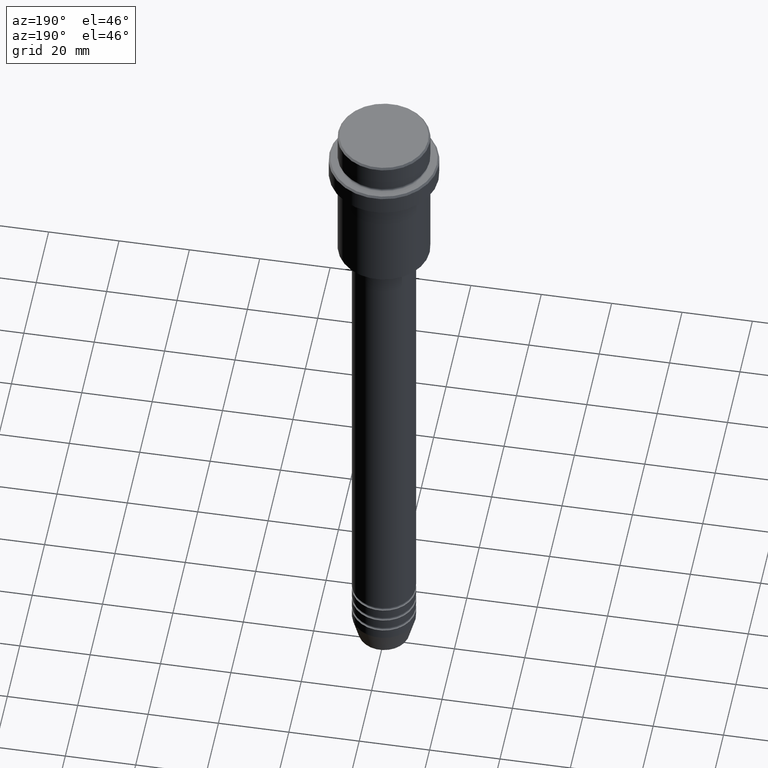
[diagram: clean part render]
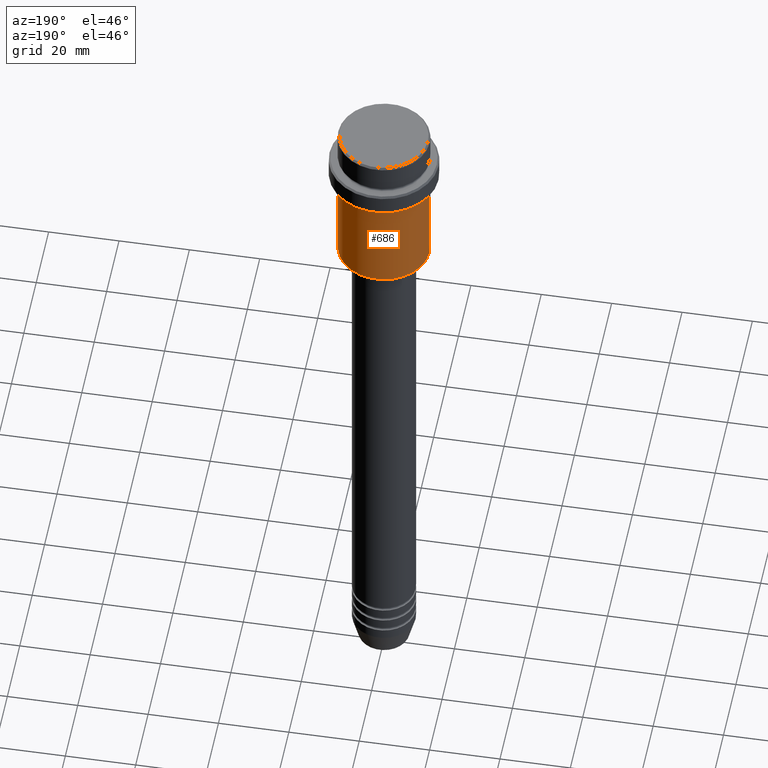
[diagram: same view with one face highlighted and labeled with its STEP entity id]
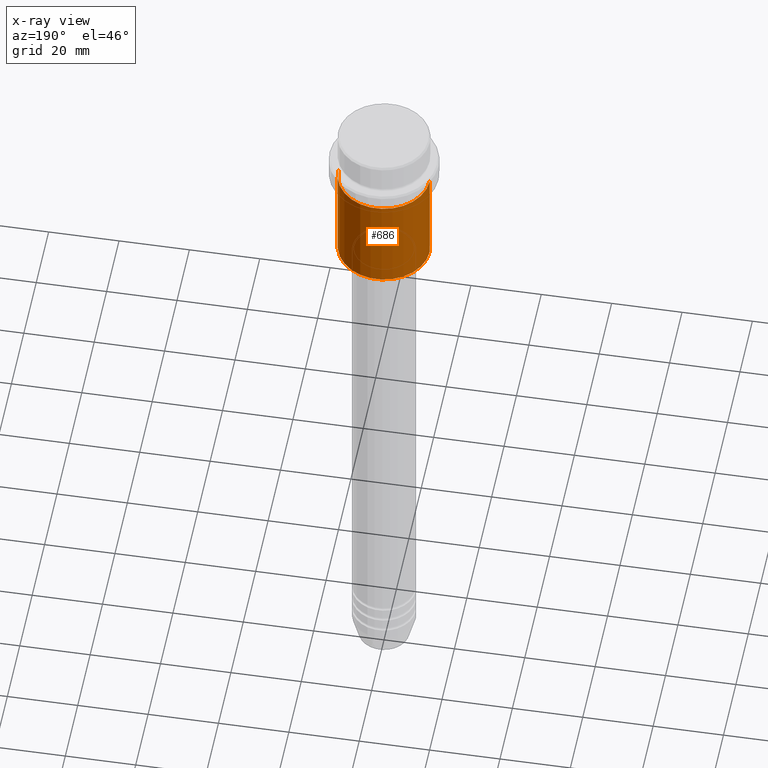
[diagram: x-ray of the same camera — body ghosted, the highlighted face saturated]
A machine part, auxiliary view. The second image highlights one B-rep face of the part: STEP entity #686.
The next image is the same camera in x-ray: the body ghosted, the highlighted face saturated — about 0% of this face is hidden behind the body in this view.
In plain terms, the highlighted cylindrical surface (partial cylindrical patch) has radius 13 mm, axis along (-0, -0, 1).
Its self-contained STEP definition (entity closure, byte-faithful):
#35 = VERTEX_POINT ( 'NONE', #377 ) ;
#86 = DIRECTION ( 'NONE',  ( -0.000000000000000000, -0.000000000000000000, 1.000000000000000000 ) ) ;
#137 = CARTESIAN_POINT ( 'NONE',  ( 0.000000000000000000, 0.000000000000000000, -44.50000000000004974 ) ) ;
#168 = ORIENTED_EDGE ( 'NONE', *, *, #898, .T. ) ;
#201 = DIRECTION ( 'NONE',  ( -0.000000000000000000, -0.000000000000000000, 1.000000000000000000 ) ) ;
#216 = CIRCLE ( 'NONE', #623, 13.00000000000000000 ) ;
#223 = CARTESIAN_POINT ( 'NONE',  ( -13.00000000000000000, 1.592040838891559095E-15, 0.000000000000000000 ) ) ;
#278 = EDGE_CURVE ( 'NONE', #35, #927, #1290, .T. ) ;
#299 = CARTESIAN_POINT ( 'NONE',  ( 0.000000000000000000, 0.000000000000000000, -16.00000000000000000 ) ) ;
#375 = CARTESIAN_POINT ( 'NONE',  ( -13.00000000000000000, 1.592040838891559095E-15, -44.50000000000004974 ) ) ;
#377 = CARTESIAN_POINT ( 'NONE',  ( 13.00000000000000000, 0.000000000000000000, -16.00000000000000000 ) ) ;
#411 = FACE_OUTER_BOUND ( 'NONE', #562, .T. ) ;
#419 = CARTESIAN_POINT ( 'NONE',  ( 13.00000000000000000, 0.000000000000000000, -44.50000000000004974 ) ) ;
#456 = ORIENTED_EDGE ( 'NONE', *, *, #790, .F. ) ;
#459 = LINE ( 'NONE', #1108, #813 ) ;
#508 = VECTOR ( 'NONE', #1099, 1000.000000000000000 ) ;
#529 = AXIS2_PLACEMENT_3D ( 'NONE', #1390, #201, #1282 ) ;
#545 = CYLINDRICAL_SURFACE ( 'NONE', #529, 13.00000000000000000 ) ;
#561 = DIRECTION ( 'NONE',  ( -0.000000000000000000, -0.000000000000000000, 1.000000000000000000 ) ) ;
#562 = EDGE_LOOP ( 'NONE', ( #168, #1237, #1182, #456 ) ) ;
#567 = VERTEX_POINT ( 'NONE', #375 ) ;
#574 = DIRECTION ( 'NONE',  ( -1.000000000000000000, 0.000000000000000000, 0.000000000000000000 ) ) ;
#605 = DIRECTION ( 'NONE',  ( 1.000000000000000000, 0.000000000000000000, 0.000000000000000000 ) ) ;
#623 = AXIS2_PLACEMENT_3D ( 'NONE', #137, #1124, #574 ) ;
#686 = ADVANCED_FACE ( 'NONE', ( #411 ), #545, .T. ) ;
#774 = CARTESIAN_POINT ( 'NONE',  ( -13.00000000000000000, 1.592040838891559095E-15, -16.00000000000000000 ) ) ;
#788 = AXIS2_PLACEMENT_3D ( 'NONE', #299, #86, #605 ) ;
#790 = EDGE_CURVE ( 'NONE', #1407, #35, #459, .T. ) ;
#813 = VECTOR ( 'NONE', #561, 1000.000000000000000 ) ;
#887 = LINE ( 'NONE', #223, #508 ) ;
#898 = EDGE_CURVE ( 'NONE', #1407, #567, #216, .T. ) ;
#927 = VERTEX_POINT ( 'NONE', #774 ) ;
#1099 = DIRECTION ( 'NONE',  ( -0.000000000000000000, -0.000000000000000000, 1.000000000000000000 ) ) ;
#1108 = CARTESIAN_POINT ( 'NONE',  ( 13.00000000000000000, 0.000000000000000000, 0.000000000000000000 ) ) ;
#1124 = DIRECTION ( 'NONE',  ( -0.000000000000000000, -0.000000000000000000, 1.000000000000000000 ) ) ;
#1182 = ORIENTED_EDGE ( 'NONE', *, *, #278, .F. ) ;
#1234 = EDGE_CURVE ( 'NONE', #567, #927, #887, .T. ) ;
#1237 = ORIENTED_EDGE ( 'NONE', *, *, #1234, .T. ) ;
#1282 = DIRECTION ( 'NONE',  ( 1.000000000000000000, 0.000000000000000000, 0.000000000000000000 ) ) ;
#1290 = CIRCLE ( 'NONE', #788, 13.00000000000000000 ) ;
#1390 = CARTESIAN_POINT ( 'NONE',  ( 0.000000000000000000, 0.000000000000000000, 0.000000000000000000 ) ) ;
#1407 = VERTEX_POINT ( 'NONE', #419 ) ;